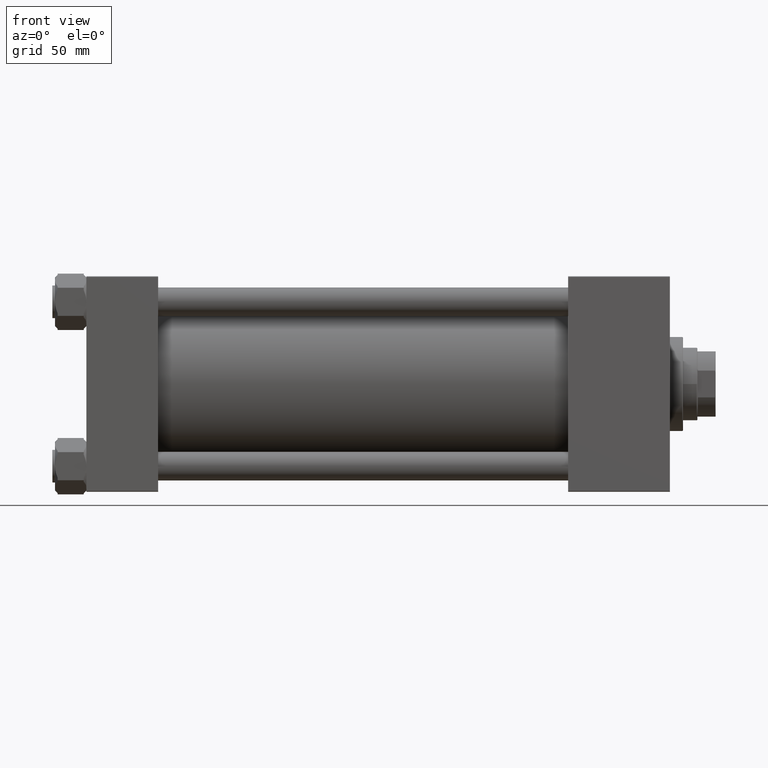
[diagram: clean part render]
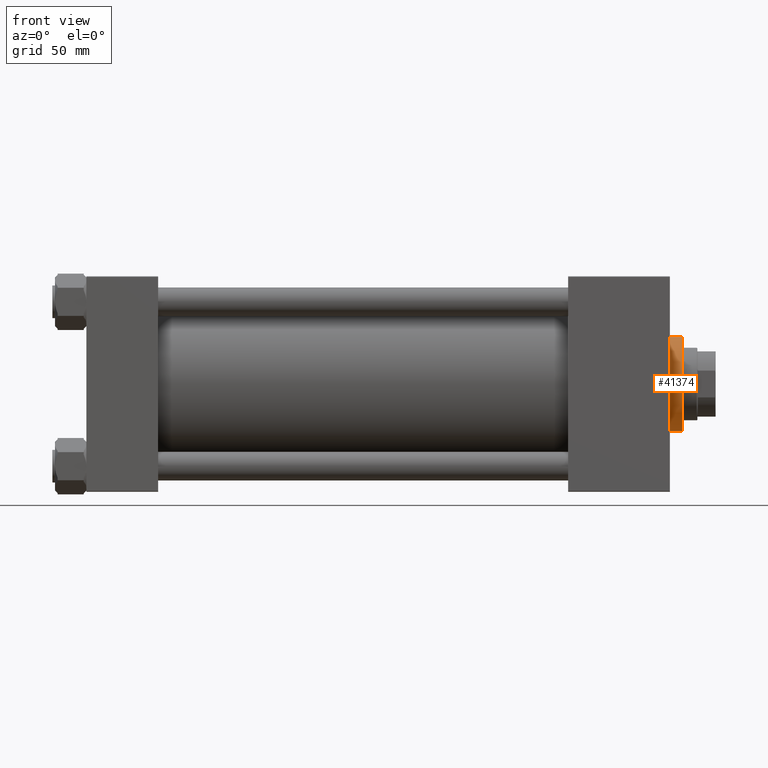
[diagram: same view with one face highlighted and labeled with its STEP entity id]
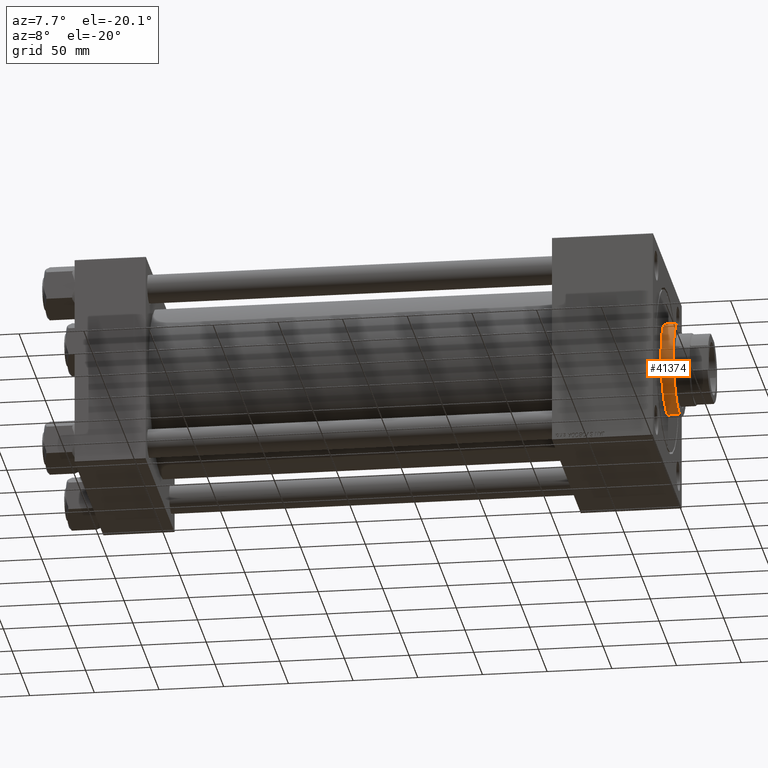
[diagram: same view with one face highlighted and labeled with its STEP entity id]
A machine part, front view. The second image highlights one B-rep face of the part: STEP entity #41374.
A second angle (auxiliary view) of the same face is appended — the face is thin or edge-on in the first view.
In plain terms, the highlighted cylindrical surface (partial cylindrical patch) has radius 36 mm, axis along (-1, -0, -0).
Its self-contained STEP definition (entity closure, byte-faithful):
#840 = CYLINDRICAL_SURFACE ( 'NONE', #49321, 36.00000000000000000 ) ;
#1867 = DIRECTION ( 'NONE',  ( 0.000000000000000000, 0.000000000000000000, -1.000000000000000000 ) ) ;
#4327 = CARTESIAN_POINT ( 'NONE',  ( 36.00000000000000000, 4.408728476930470856E-15, 38.20000000000001705 ) ) ;
#4804 = CARTESIAN_POINT ( 'NONE',  ( -36.00000000000000000, 0.000000000000000000, 28.69999999999999929 ) ) ;
#4930 = ORIENTED_EDGE ( 'NONE', *, *, #22378, .T. ) ;
#5331 = VERTEX_POINT ( 'NONE', #12189 ) ;
#5754 = CARTESIAN_POINT ( 'NONE',  ( 36.00000000000000000, 4.408728476930470856E-15, 38.69999999999999574 ) ) ;
#6864 = VERTEX_POINT ( 'NONE', #29324 ) ;
#10521 = LINE ( 'NONE', #11027, #35210 ) ;
#11027 = CARTESIAN_POINT ( 'NONE',  ( -36.00000000000000000, 0.000000000000000000, 38.69999999999999574 ) ) ;
#12189 = CARTESIAN_POINT ( 'NONE',  ( -36.00000000000000000, 0.000000000000000000, 38.20000000000001705 ) ) ;
#12272 = EDGE_CURVE ( 'NONE', #22991, #6864, #49745, .T. ) ;
#12780 = ORIENTED_EDGE ( 'NONE', *, *, #16989, .T. ) ;
#16520 = DIRECTION ( 'NONE',  ( -0.000000000000000000, -0.000000000000000000, -1.000000000000000000 ) ) ;
#16989 = EDGE_CURVE ( 'NONE', #17102, #6864, #17617, .T. ) ;
#17042 = CARTESIAN_POINT ( 'NONE',  ( 0.000000000000000000, 0.000000000000000000, 38.20000000000001705 ) ) ;
#17102 = VERTEX_POINT ( 'NONE', #4804 ) ;
#17617 = CIRCLE ( 'NONE', #27490, 36.00000000000000000 ) ;
#19252 = DIRECTION ( 'NONE',  ( -0.000000000000000000, -0.000000000000000000, -1.000000000000000000 ) ) ;
#19623 = EDGE_LOOP ( 'NONE', ( #49416, #4930, #31144, #12780 ) ) ;
#22378 = EDGE_CURVE ( 'NONE', #22991, #5331, #48931, .T. ) ;
#22991 = VERTEX_POINT ( 'NONE', #4327 ) ;
#27490 = AXIS2_PLACEMENT_3D ( 'NONE', #45233, #38272, #30049 ) ;
#29324 = CARTESIAN_POINT ( 'NONE',  ( 36.00000000000000000, 4.408728476930470856E-15, 28.69999999999999929 ) ) ;
#29937 = DIRECTION ( 'NONE',  ( -0.000000000000000000, -0.000000000000000000, -1.000000000000000000 ) ) ;
#30049 = DIRECTION ( 'NONE',  ( 1.000000000000000000, 0.000000000000000000, 0.000000000000000000 ) ) ;
#31144 = ORIENTED_EDGE ( 'NONE', *, *, #34932, .T. ) ;
#31973 = FACE_OUTER_BOUND ( 'NONE', #19623, .T. ) ;
#32233 = DIRECTION ( 'NONE',  ( -1.000000000000000000, 0.000000000000000000, 0.000000000000000000 ) ) ;
#34932 = EDGE_CURVE ( 'NONE', #5331, #17102, #10521, .T. ) ;
#35210 = VECTOR ( 'NONE', #19252, 1000.000000000000000 ) ;
#38272 = DIRECTION ( 'NONE',  ( 0.000000000000000000, 0.000000000000000000, 1.000000000000000000 ) ) ;
#39057 = AXIS2_PLACEMENT_3D ( 'NONE', #17042, #1867, #49458 ) ;
#41374 = ADVANCED_FACE ( 'NONE', ( #31973 ), #840, .T. ) ;
#42117 = VECTOR ( 'NONE', #29937, 1000.000000000000000 ) ;
#45233 = CARTESIAN_POINT ( 'NONE',  ( 0.000000000000000000, 0.000000000000000000, 28.69999999999999929 ) ) ;
#47934 = CARTESIAN_POINT ( 'NONE',  ( 0.000000000000000000, 0.000000000000000000, 38.69999999999999574 ) ) ;
#48931 = CIRCLE ( 'NONE', #39057, 36.00000000000000000 ) ;
#49321 = AXIS2_PLACEMENT_3D ( 'NONE', #47934, #16520, #32233 ) ;
#49416 = ORIENTED_EDGE ( 'NONE', *, *, #12272, .F. ) ;
#49458 = DIRECTION ( 'NONE',  ( 1.000000000000000000, 0.000000000000000000, 0.000000000000000000 ) ) ;
#49745 = LINE ( 'NONE', #5754, #42117 ) ;